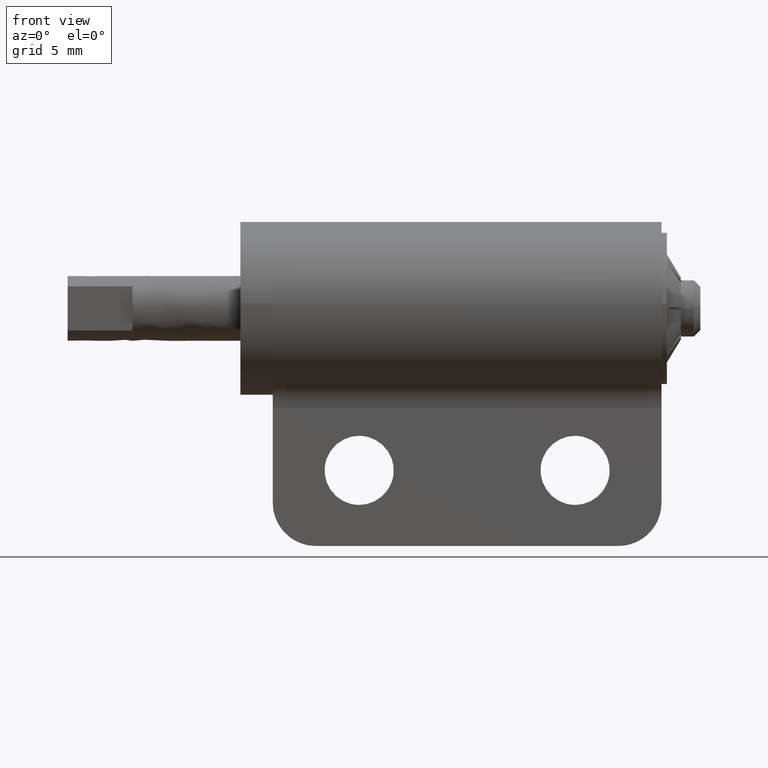
[diagram: clean part render]
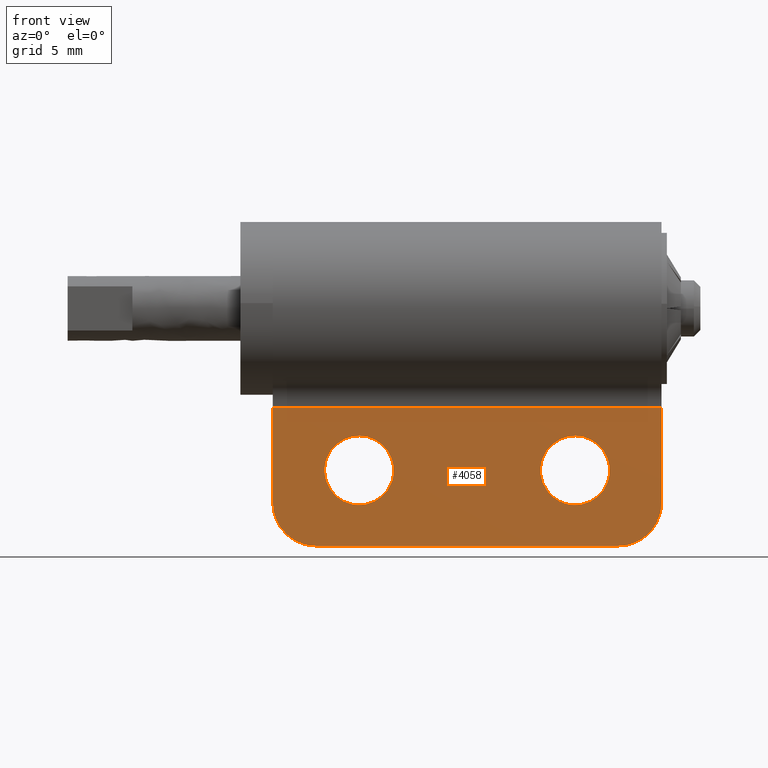
[diagram: same view with one face highlighted and labeled with its STEP entity id]
A machine part, front view. The second image highlights one B-rep face of the part: STEP entity #4058.
In plain terms, the highlighted face is a freeform B-spline surface patch.
Its self-contained STEP definition (entity closure, byte-faithful):
#3120=CARTESIAN_POINT('',(-20.500000000000000,-1.499999999999946,9.100000000000110));
#3121=VERTEX_POINT('',#3120);
#3122=CARTESIAN_POINT('',(-22.095067733971302,-1.499999999999946,7.625534553186384));
#3123=VERTEX_POINT('',#3122);
#3124=CARTESIAN_POINT('',(-20.500000000000000,-1.499999999999946,9.100000000000110));
#3125=CARTESIAN_POINT('',(-21.979024786612726,-1.499999999999946,9.100000000000110));
#3126=CARTESIAN_POINT('',(-22.095067733971302,-1.499999999999946,7.625534553186385));
#3134=(BOUNDED_CURVE()B_SPLINE_CURVE(2,(#3124,#3125,#3126),.UNSPECIFIED.,.F.,.U.)B_SPLINE_CURVE_WITH_KNOTS((3,3),(0.0,0.236331300628098),.UNSPECIFIED.)CURVE()GEOMETRIC_REPRESENTATION_ITEM()RATIONAL_B_SPLINE_CURVE((1.0,0.723120658610667,0.969723356162072))REPRESENTATION_ITEM(''));
#3135=EDGE_CURVE('',#3121,#3123,#3134,.T.);
#3176=CARTESIAN_POINT('',(-18.904932266028709,-1.499999999999946,7.374465446813836));
#3177=VERTEX_POINT('',#3176);
#3183=CARTESIAN_POINT('',(-18.904932266028698,-1.499999999999946,7.374465446813836));
#3184=CARTESIAN_POINT('',(-18.899999999999999,-1.499999999999946,7.437135828766016));
#3185=CARTESIAN_POINT('',(-18.899999999999999,-1.499999999999946,7.500000000000110));
#3186=CARTESIAN_POINT('',(-18.900000000000002,-1.499999999999946,9.100000000000110));
#3187=CARTESIAN_POINT('',(-20.500000000000000,-1.499999999999946,9.100000000000110));
#3195=(BOUNDED_CURVE()B_SPLINE_CURVE(2,(#3183,#3184,#3185,#3186,#3187),.UNSPECIFIED.,.F.,.U.)B_SPLINE_CURVE_WITH_KNOTS((3,2,3),(0.736331300628098,0.750000000000000,1.0),.UNSPECIFIED.)CURVE()GEOMETRIC_REPRESENTATION_ITEM()RATIONAL_B_SPLINE_CURVE((0.969723356162072,0.983986122575881,1.0,0.707106781186548,1.0))REPRESENTATION_ITEM(''));
#3196=EDGE_CURVE('',#3177,#3121,#3195,.T.);
#3219=CARTESIAN_POINT('',(-20.500000000000000,-1.499999999999946,5.900000000000110));
#3220=VERTEX_POINT('',#3219);
#3221=CARTESIAN_POINT('',(-22.095067733971295,-1.499999999999947,7.625534553186384));
#3222=CARTESIAN_POINT('',(-22.100000000000001,-1.499999999999946,7.562864171234204));
#3223=CARTESIAN_POINT('',(-22.100000000000001,-1.499999999999946,7.500000000000110));
#3224=CARTESIAN_POINT('',(-22.099999999999998,-1.499999999999946,5.900000000000109));
#3225=CARTESIAN_POINT('',(-20.500000000000000,-1.499999999999946,5.900000000000110));
#3233=(BOUNDED_CURVE()B_SPLINE_CURVE(2,(#3221,#3222,#3223,#3224,#3225),.UNSPECIFIED.,.F.,.U.)B_SPLINE_CURVE_WITH_KNOTS((3,2,3),(0.236331300628098,0.250000000000000,0.500000000000000),.UNSPECIFIED.)CURVE()GEOMETRIC_REPRESENTATION_ITEM()RATIONAL_B_SPLINE_CURVE((0.969723356162072,0.983986122575881,1.0,0.707106781186548,1.0))REPRESENTATION_ITEM(''));
#3234=EDGE_CURVE('',#3123,#3220,#3233,.T.);
#3236=CARTESIAN_POINT('',(-20.500000000000000,-1.499999999999946,5.900000000000110));
#3237=CARTESIAN_POINT('',(-19.020975213387278,-1.499999999999946,5.900000000000109));
#3238=CARTESIAN_POINT('',(-18.904932266028702,-1.499999999999946,7.374465446813836));
#3246=(BOUNDED_CURVE()B_SPLINE_CURVE(2,(#3236,#3237,#3238),.UNSPECIFIED.,.F.,.U.)B_SPLINE_CURVE_WITH_KNOTS((3,3),(0.500000000000000,0.736331300628099),.UNSPECIFIED.)CURVE()GEOMETRIC_REPRESENTATION_ITEM()RATIONAL_B_SPLINE_CURVE((1.0,0.723120658610666,0.969723356162073))REPRESENTATION_ITEM(''));
#3247=EDGE_CURVE('',#3220,#3177,#3246,.T.);
#3302=CARTESIAN_POINT('',(-10.500000000000000,-1.499999999999946,9.100000000000110));
#3303=VERTEX_POINT('',#3302);
#3304=CARTESIAN_POINT('',(-12.095067733971300,-1.499999999999946,7.625534553186384));
#3305=VERTEX_POINT('',#3304);
#3306=CARTESIAN_POINT('',(-10.500000000000000,-1.499999999999946,9.100000000000110));
#3307=CARTESIAN_POINT('',(-11.979024786612724,-1.499999999999946,9.100000000000110));
#3308=CARTESIAN_POINT('',(-12.095067733971293,-1.499999999999946,7.625534553186385));
#3316=(BOUNDED_CURVE()B_SPLINE_CURVE(2,(#3306,#3307,#3308),.UNSPECIFIED.,.F.,.U.)B_SPLINE_CURVE_WITH_KNOTS((3,3),(0.0,0.236331300628098),.UNSPECIFIED.)CURVE()GEOMETRIC_REPRESENTATION_ITEM()RATIONAL_B_SPLINE_CURVE((1.0,0.723120658610667,0.969723356162072))REPRESENTATION_ITEM(''));
#3317=EDGE_CURVE('',#3303,#3305,#3316,.T.);
#3358=CARTESIAN_POINT('',(-8.904932266028705,-1.499999999999946,7.374465446813836));
#3359=VERTEX_POINT('',#3358);
#3365=CARTESIAN_POINT('',(-8.904932266028705,-1.499999999999946,7.374465446813836));
#3366=CARTESIAN_POINT('',(-8.900000000000000,-1.499999999999946,7.437135828766016));
#3367=CARTESIAN_POINT('',(-8.900000000000000,-1.499999999999946,7.500000000000110));
#3368=CARTESIAN_POINT('',(-8.900000000000002,-1.499999999999946,9.100000000000110));
#3369=CARTESIAN_POINT('',(-10.500000000000000,-1.499999999999946,9.100000000000110));
#3377=(BOUNDED_CURVE()B_SPLINE_CURVE(2,(#3365,#3366,#3367,#3368,#3369),.UNSPECIFIED.,.F.,.U.)B_SPLINE_CURVE_WITH_KNOTS((3,2,3),(0.736331300628098,0.750000000000000,1.0),.UNSPECIFIED.)CURVE()GEOMETRIC_REPRESENTATION_ITEM()RATIONAL_B_SPLINE_CURVE((0.969723356162072,0.983986122575881,1.0,0.707106781186548,1.0))REPRESENTATION_ITEM(''));
#3378=EDGE_CURVE('',#3359,#3303,#3377,.T.);
#3401=CARTESIAN_POINT('',(-10.500000000000000,-1.499999999999946,5.900000000000110));
#3402=VERTEX_POINT('',#3401);
#3403=CARTESIAN_POINT('',(-12.095067733971295,-1.499999999999947,7.625534553186384));
#3404=CARTESIAN_POINT('',(-12.100000000000000,-1.499999999999946,7.562864171234204));
#3405=CARTESIAN_POINT('',(-12.100000000000000,-1.499999999999946,7.500000000000110));
#3406=CARTESIAN_POINT('',(-12.099999999999998,-1.499999999999946,5.900000000000109));
#3407=CARTESIAN_POINT('',(-10.500000000000000,-1.499999999999946,5.900000000000110));
#3415=(BOUNDED_CURVE()B_SPLINE_CURVE(2,(#3403,#3404,#3405,#3406,#3407),.UNSPECIFIED.,.F.,.U.)B_SPLINE_CURVE_WITH_KNOTS((3,2,3),(0.236331300628098,0.250000000000000,0.500000000000000),.UNSPECIFIED.)CURVE()GEOMETRIC_REPRESENTATION_ITEM()RATIONAL_B_SPLINE_CURVE((0.969723356162072,0.983986122575881,1.0,0.707106781186548,1.0))REPRESENTATION_ITEM(''));
#3416=EDGE_CURVE('',#3305,#3402,#3415,.T.);
#3418=CARTESIAN_POINT('',(-10.500000000000000,-1.499999999999946,5.900000000000110));
#3419=CARTESIAN_POINT('',(-9.020975213387272,-1.499999999999946,5.900000000000109));
#3420=CARTESIAN_POINT('',(-8.904932266028705,-1.499999999999946,7.374465446813836));
#3428=(BOUNDED_CURVE()B_SPLINE_CURVE(2,(#3418,#3419,#3420),.UNSPECIFIED.,.F.,.U.)B_SPLINE_CURVE_WITH_KNOTS((3,3),(0.500000000000000,0.736331300628099),.UNSPECIFIED.)CURVE()GEOMETRIC_REPRESENTATION_ITEM()RATIONAL_B_SPLINE_CURVE((1.0,0.723120658610666,0.969723356162073))REPRESENTATION_ITEM(''));
#3429=EDGE_CURVE('',#3402,#3359,#3428,.T.);
#3662=CARTESIAN_POINT('',(-6.500000000000000,-1.499999999999986,9.000000000051420));
#3663=VERTEX_POINT('',#3662);
#3664=CARTESIAN_POINT('',(-8.500000000000000,-1.499999999999986,11.000000000051420));
#3665=VERTEX_POINT('',#3664);
#3666=CARTESIAN_POINT('',(-6.500000000000001,-1.499999999999986,9.000000000051420));
#3667=CARTESIAN_POINT('',(-6.500000000000003,-1.499999999999985,11.000000000051420));
#3668=CARTESIAN_POINT('',(-8.500000000000000,-1.499999999999986,11.000000000051420));
#3676=(BOUNDED_CURVE()B_SPLINE_CURVE(2,(#3666,#3667,#3668),.UNSPECIFIED.,.F.,.U.)CURVE()GEOMETRIC_REPRESENTATION_ITEM()QUASI_UNIFORM_CURVE()RATIONAL_B_SPLINE_CURVE((1.0,0.707106781186548,1.0))REPRESENTATION_ITEM(''));
#3677=EDGE_CURVE('',#3663,#3665,#3676,.T.);
#3723=CARTESIAN_POINT('',(-22.500000000000000,-1.499999999999986,11.000000000051420));
#3724=VERTEX_POINT('',#3723);
#3725=CARTESIAN_POINT('',(-24.500000000000000,-1.499999999999986,9.000000000051420));
#3726=VERTEX_POINT('',#3725);
#3727=CARTESIAN_POINT('',(-22.500000000000000,-1.499999999999986,11.000000000051420));
#3728=CARTESIAN_POINT('',(-24.500000000000004,-1.499999999999985,11.000000000051420));
#3729=CARTESIAN_POINT('',(-24.500000000000000,-1.499999999999986,9.000000000051420));
#3737=(BOUNDED_CURVE()B_SPLINE_CURVE(2,(#3727,#3728,#3729),.UNSPECIFIED.,.F.,.U.)CURVE()GEOMETRIC_REPRESENTATION_ITEM()QUASI_UNIFORM_CURVE()RATIONAL_B_SPLINE_CURVE((1.0,0.707106781186548,1.0))REPRESENTATION_ITEM(''));
#3738=EDGE_CURVE('',#3724,#3726,#3737,.T.);
#3784=CARTESIAN_POINT('',(-24.500000000000000,-1.499999999999986,4.609772228646310));
#3785=VERTEX_POINT('',#3784);
#3808=CARTESIAN_POINT('',(-6.500000000000000,-1.499999999999986,4.609772228646310));
#3809=VERTEX_POINT('',#3808);
#3823=CARTESIAN_POINT('',(-6.500000000000000,-1.499999999999986,4.609772228646310));
#3824=CARTESIAN_POINT('',(-24.500000000000000,-1.499999999999986,4.609772228646310));
#3825=QUASI_UNIFORM_CURVE('',1,(#3823,#3824),.UNSPECIFIED.,.F.,.U.);
#3826=EDGE_CURVE('',#3809,#3785,#3825,.T.);
#3968=CARTESIAN_POINT('',(-8.500000000000000,-1.499999999999986,11.000000000051420));
#3969=CARTESIAN_POINT('',(-22.500000000000000,-1.499999999999986,11.000000000051420));
#3970=QUASI_UNIFORM_CURVE('',1,(#3968,#3969),.UNSPECIFIED.,.F.,.U.);
#3971=EDGE_CURVE('',#3665,#3724,#3970,.T.);
#3982=CARTESIAN_POINT('',(-24.500000000000000,-1.499999999999986,4.609772228646310));
#3983=CARTESIAN_POINT('',(-24.500000000000000,-1.499999999999986,9.000000000051420));
#3984=QUASI_UNIFORM_CURVE('',1,(#3982,#3983),.UNSPECIFIED.,.F.,.U.);
#3985=EDGE_CURVE('',#3785,#3726,#3984,.T.);
#4016=CARTESIAN_POINT('',(-6.500000000000000,-1.499999999999986,4.609772228646310));
#4017=CARTESIAN_POINT('',(-6.500000000000000,-1.499999999999986,9.000000000051420));
#4018=QUASI_UNIFORM_CURVE('',1,(#4016,#4017),.UNSPECIFIED.,.F.,.U.);
#4019=EDGE_CURVE('',#3809,#3663,#4018,.T.);
#4033=CARTESIAN_POINT('',(-25.399099965112509,-1.499999999999986,11.319191864847600));
#4034=CARTESIAN_POINT('',(-25.399099965112509,-1.499999999999986,4.290580192450862));
#4035=CARTESIAN_POINT('',(-5.600899552089871,-1.499999999999986,11.319191864847600));
#4036=CARTESIAN_POINT('',(-5.600899552089871,-1.499999999999986,4.290580192450862));
#4037=B_SPLINE_SURFACE_WITH_KNOTS('',1,1,((#4033,#4035),(#4034,#4036)),.UNSPECIFIED.,.F.,.F.,.U.,(2,2),(2,2),(0.0,7.028611672396742),(0.0,19.798200413022631),.UNSPECIFIED.);
#4038=ORIENTED_EDGE('',*,*,#3971,.T.);
#4039=ORIENTED_EDGE('',*,*,#3738,.T.);
#4040=ORIENTED_EDGE('',*,*,#3985,.F.);
#4041=ORIENTED_EDGE('',*,*,#3826,.F.);
#4042=ORIENTED_EDGE('',*,*,#4019,.T.);
#4043=ORIENTED_EDGE('',*,*,#3677,.T.);
#4044=EDGE_LOOP('',(#4038,#4039,#4040,#4041,#4042,#4043));
#4045=FACE_OUTER_BOUND('',#4044,.T.);
#4046=ORIENTED_EDGE('',*,*,#3429,.F.);
#4047=ORIENTED_EDGE('',*,*,#3416,.F.);
#4048=ORIENTED_EDGE('',*,*,#3317,.F.);
#4049=ORIENTED_EDGE('',*,*,#3378,.F.);
#4050=EDGE_LOOP('',(#4046,#4047,#4048,#4049));
#4051=FACE_BOUND('',#4050,.T.);
#4052=ORIENTED_EDGE('',*,*,#3247,.F.);
#4053=ORIENTED_EDGE('',*,*,#3234,.F.);
#4054=ORIENTED_EDGE('',*,*,#3135,.F.);
#4055=ORIENTED_EDGE('',*,*,#3196,.F.);
#4056=EDGE_LOOP('',(#4052,#4053,#4054,#4055));
#4057=FACE_BOUND('',#4056,.T.);
#4058=ADVANCED_FACE('',(#4045,#4051,#4057),#4037,.T.);